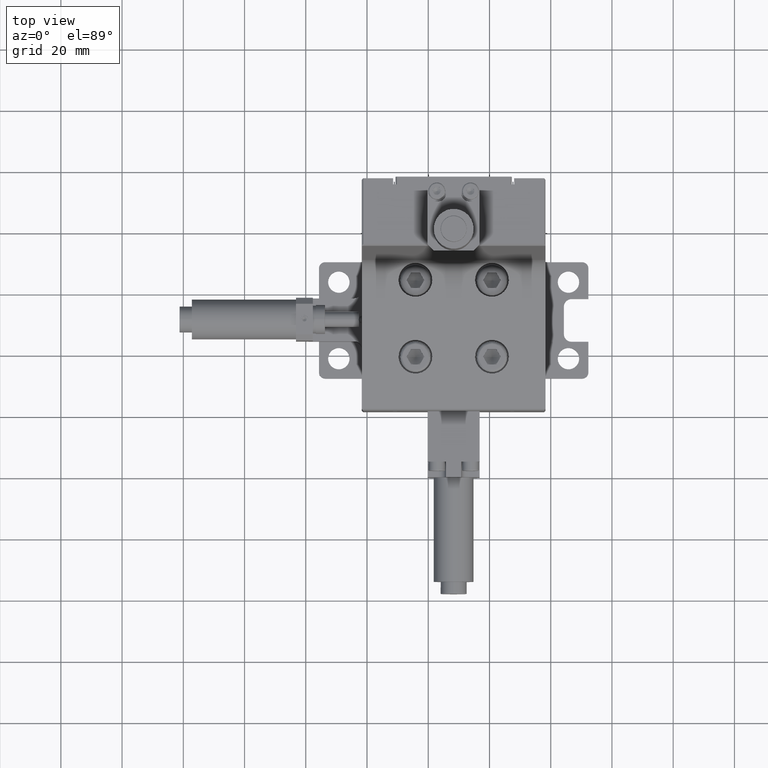
[diagram: clean part render]
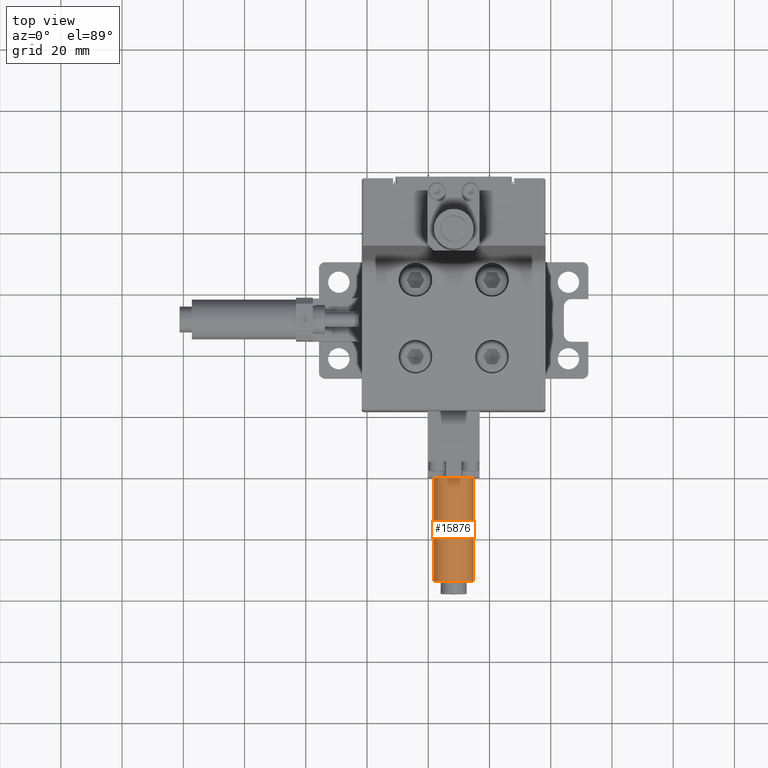
[diagram: same view with one face highlighted and labeled with its STEP entity id]
A machine part, top view. The second image highlights one B-rep face of the part: STEP entity #15876.
In plain terms, the highlighted cylindrical surface (edge-blend (fillet) strip) has radius 6.5 mm, axis along (0, -1, 0).
Its self-contained STEP definition (entity closure, byte-faithful):
#1135 = LINE ( 'NONE', #6991, #28905 ) ;
#4123 = LINE ( 'NONE', #22167, #18896 ) ;
#4184 = DIRECTION ( 'NONE',  ( 1.067522139062650300E-015, -1.000000000000000000, 0.0000000000000000000 ) ) ;
#5325 = ORIENTED_EDGE ( 'NONE', *, *, #23088, .T. ) ;
#5627 = CYLINDRICAL_SURFACE ( 'NONE', #23141, 6.500000000000001800 ) ;
#5997 = ORIENTED_EDGE ( 'NONE', *, *, #11596, .F. ) ;
#6074 = EDGE_LOOP ( 'NONE', ( #5325, #16795, #10663, #5997 ) ) ;
#6784 = CARTESIAN_POINT ( 'NONE',  ( -18.20230439999999900, -119.8825131080000000, 4.371286085000002200 ) ) ;
#6991 = CARTESIAN_POINT ( 'NONE',  ( -5.202304399999997400, -119.8825131080000000, 4.371286085000001300 ) ) ;
#9157 = DIRECTION ( 'NONE',  ( 1.067522139062650300E-015, -1.000000000000000000, 0.0000000000000000000 ) ) ;
#9462 = CARTESIAN_POINT ( 'NONE',  ( -11.70230439999996200, -153.8825131080000100, 4.371286085000001300 ) ) ;
#9853 = CARTESIAN_POINT ( 'NONE',  ( -18.20230439999996700, -153.8825131080000100, 4.371286085000002200 ) ) ;
#10433 = EDGE_CURVE ( 'NONE', #34775, #30382, #35575, .T. ) ;
#10663 = ORIENTED_EDGE ( 'NONE', *, *, #10433, .F. ) ;
#11060 = DIRECTION ( 'NONE',  ( 1.067522139062650300E-015, -1.000000000000000000, 0.0000000000000000000 ) ) ;
#11596 = EDGE_CURVE ( 'NONE', #14929, #34775, #1135, .T. ) ;
#12274 = DIRECTION ( 'NONE',  ( 1.000000000000000000, 0.0000000000000000000, 0.0000000000000000000 ) ) ;
#13648 = VERTEX_POINT ( 'NONE', #6784 ) ;
#14625 = DIRECTION ( 'NONE',  ( 1.067522139062650300E-015, -1.000000000000000000, 0.0000000000000000000 ) ) ;
#14929 = VERTEX_POINT ( 'NONE', #16537 ) ;
#15639 = FACE_OUTER_BOUND ( 'NONE', #6074, .T. ) ;
#15876 = ADVANCED_FACE ( 'NONE', ( #15639 ), #5627, .T. ) ;
#16537 = CARTESIAN_POINT ( 'NONE',  ( -5.202304399999997400, -119.8825131080000000, 4.371286085000001300 ) ) ;
#16795 = ORIENTED_EDGE ( 'NONE', *, *, #33126, .T. ) ;
#18140 = AXIS2_PLACEMENT_3D ( 'NONE', #25751, #9157, #28541 ) ;
#18896 = VECTOR ( 'NONE', #11060, 1000.000000000000000 ) ;
#20050 = CARTESIAN_POINT ( 'NONE',  ( -11.70230439999999900, -119.8825131080000000, 4.371286085000001300 ) ) ;
#22167 = CARTESIAN_POINT ( 'NONE',  ( -18.20230439999999900, -119.8825131080000000, 4.371286085000002200 ) ) ;
#22293 = AXIS2_PLACEMENT_3D ( 'NONE', #9462, #28826, #12274 ) ;
#23088 = EDGE_CURVE ( 'NONE', #14929, #13648, #24107, .T. ) ;
#23141 = AXIS2_PLACEMENT_3D ( 'NONE', #20050, #14625, #28507 ) ;
#24107 = CIRCLE ( 'NONE', #18140, 6.500000000000001800 ) ;
#25751 = CARTESIAN_POINT ( 'NONE',  ( -11.70230439999999900, -119.8825131080000000, 4.371286085000001300 ) ) ;
#28507 = DIRECTION ( 'NONE',  ( 1.000000000000000000, 0.0000000000000000000, 0.0000000000000000000 ) ) ;
#28541 = DIRECTION ( 'NONE',  ( 1.000000000000000000, 0.0000000000000000000, 0.0000000000000000000 ) ) ;
#28563 = CARTESIAN_POINT ( 'NONE',  ( -5.202304399999961000, -153.8825131080000100, 4.371286085000001300 ) ) ;
#28826 = DIRECTION ( 'NONE',  ( 1.067522139062650300E-015, -1.000000000000000000, 0.0000000000000000000 ) ) ;
#28905 = VECTOR ( 'NONE', #4184, 1000.000000000000000 ) ;
#30382 = VERTEX_POINT ( 'NONE', #9853 ) ;
#33126 = EDGE_CURVE ( 'NONE', #13648, #30382, #4123, .T. ) ;
#34775 = VERTEX_POINT ( 'NONE', #28563 ) ;
#35575 = CIRCLE ( 'NONE', #22293, 6.500000000000001800 ) ;